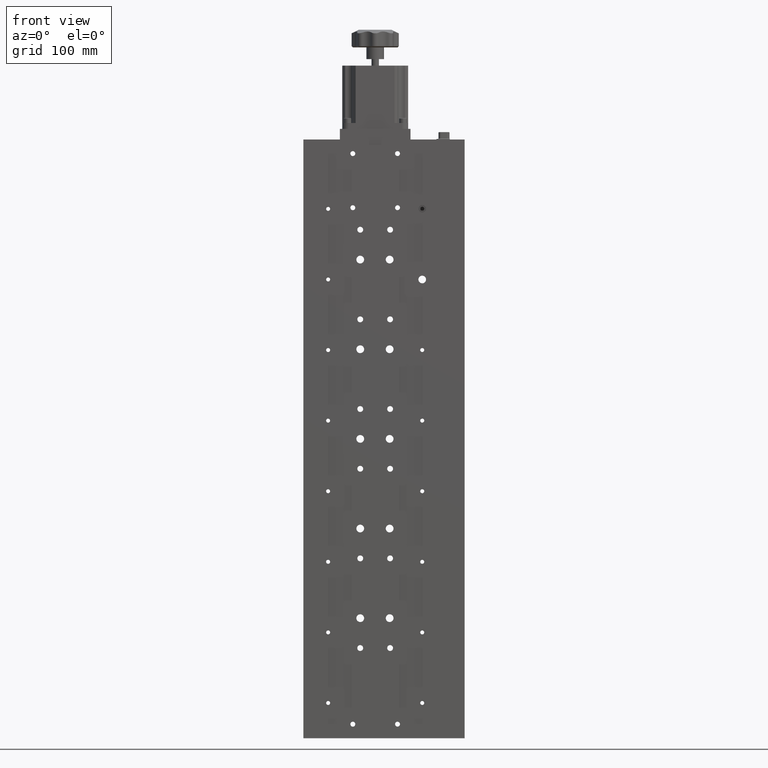
[diagram: clean part render]
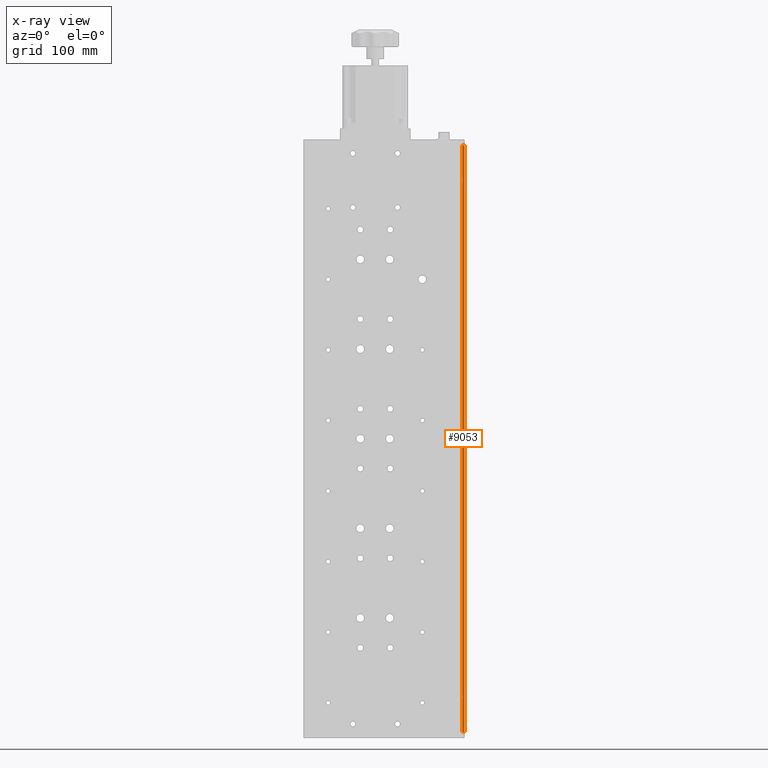
[diagram: x-ray — body ghosted, one internal face saturated and labeled with its STEP entity id]
A machine part, front view, then the same camera in x-ray: the body is ghosted and one INTERNAL B-rep face — a face not visible from any outside direction — is saturated and labeled: STEP entity #9053.
In plain terms, the highlighted planar face has unit normal (0, 1, 0).
Its self-contained STEP definition (entity closure, byte-faithful):
#741 = VECTOR ( 'NONE', #2597, 1000.000000000000000 ) ;
#1603 = DIRECTION ( 'NONE',  ( -0.0000000000000000000, -0.0000000000000000000, -1.000000000000000000 ) ) ;
#1781 = LINE ( 'NONE', #25408, #741 ) ;
#2597 = DIRECTION ( 'NONE',  ( -0.0000000000000000000, -0.0000000000000000000, -1.000000000000000000 ) ) ;
#3238 = VECTOR ( 'NONE', #1603, 1000.000000000000000 ) ;
#3527 = VECTOR ( 'NONE', #7636, 1000.000000000000000 ) ;
#4553 = EDGE_LOOP ( 'NONE', ( #17470, #6544, #30950, #38988 ) ) ;
#5915 = VERTEX_POINT ( 'NONE', #40387 ) ;
#6544 = ORIENTED_EDGE ( 'NONE', *, *, #36246, .F. ) ;
#7636 = DIRECTION ( 'NONE',  ( 1.000000000000000000, 0.0000000000000000000, 0.0000000000000000000 ) ) ;
#9053 = ADVANCED_FACE ( 'NONE', ( #37718 ), #21479, .F. ) ;
#9738 = CARTESIAN_POINT ( 'NONE',  ( 63.38919164396004600, -8.917650620647901100, -249.5000000000000000 ) ) ;
#10863 = VERTEX_POINT ( 'NONE', #9738 ) ;
#13810 = CARTESIAN_POINT ( 'NONE',  ( 63.38919164396004600, -8.917650620647901100, 249.5000000000000000 ) ) ;
#15064 = DIRECTION ( 'NONE',  ( 0.0000000000000000000, 1.000000000000000000, 0.0000000000000000000 ) ) ;
#16455 = VECTOR ( 'NONE', #39206, 1000.000000000000000 ) ;
#17470 = ORIENTED_EDGE ( 'NONE', *, *, #41317, .T. ) ;
#21479 = PLANE ( 'NONE',  #31778 ) ;
#25106 = LINE ( 'NONE', #32636, #16455 ) ;
#25408 = CARTESIAN_POINT ( 'NONE',  ( 63.38919164396004600, -8.917650620647901100, 249.5000000000000000 ) ) ;
#25448 = CARTESIAN_POINT ( 'NONE',  ( 63.38919164396004600, -8.917650620647901100, 249.5000000000000000 ) ) ;
#27567 = CARTESIAN_POINT ( 'NONE',  ( 65.38919164396007500, -8.917650620647901100, 249.5000000000000000 ) ) ;
#28573 = LINE ( 'NONE', #13810, #3527 ) ;
#30950 = ORIENTED_EDGE ( 'NONE', *, *, #32031, .F. ) ;
#31778 = AXIS2_PLACEMENT_3D ( 'NONE', #34561, #15064, #37820 ) ;
#32027 = VERTEX_POINT ( 'NONE', #36875 ) ;
#32031 = EDGE_CURVE ( 'NONE', #40701, #5915, #28573, .T. ) ;
#32636 = CARTESIAN_POINT ( 'NONE',  ( 63.38919164396004600, -8.917650620647901100, -249.5000000000000000 ) ) ;
#33026 = EDGE_CURVE ( 'NONE', #40701, #10863, #1781, .T. ) ;
#34561 = CARTESIAN_POINT ( 'NONE',  ( 63.38919164396004600, -8.917650620647901100, 249.5000000000000000 ) ) ;
#36246 = EDGE_CURVE ( 'NONE', #5915, #32027, #37897, .T. ) ;
#36875 = CARTESIAN_POINT ( 'NONE',  ( 65.38919164396007500, -8.917650620647901100, -249.5000000000000000 ) ) ;
#37718 = FACE_OUTER_BOUND ( 'NONE', #4553, .T. ) ;
#37820 = DIRECTION ( 'NONE',  ( 0.0000000000000000000, -0.0000000000000000000, 1.000000000000000000 ) ) ;
#37897 = LINE ( 'NONE', #27567, #3238 ) ;
#38988 = ORIENTED_EDGE ( 'NONE', *, *, #33026, .T. ) ;
#39206 = DIRECTION ( 'NONE',  ( 1.000000000000000000, 0.0000000000000000000, 0.0000000000000000000 ) ) ;
#40387 = CARTESIAN_POINT ( 'NONE',  ( 65.38919164396007500, -8.917650620647901100, 249.5000000000000000 ) ) ;
#40701 = VERTEX_POINT ( 'NONE', #25448 ) ;
#41317 = EDGE_CURVE ( 'NONE', #10863, #32027, #25106, .T. ) ;